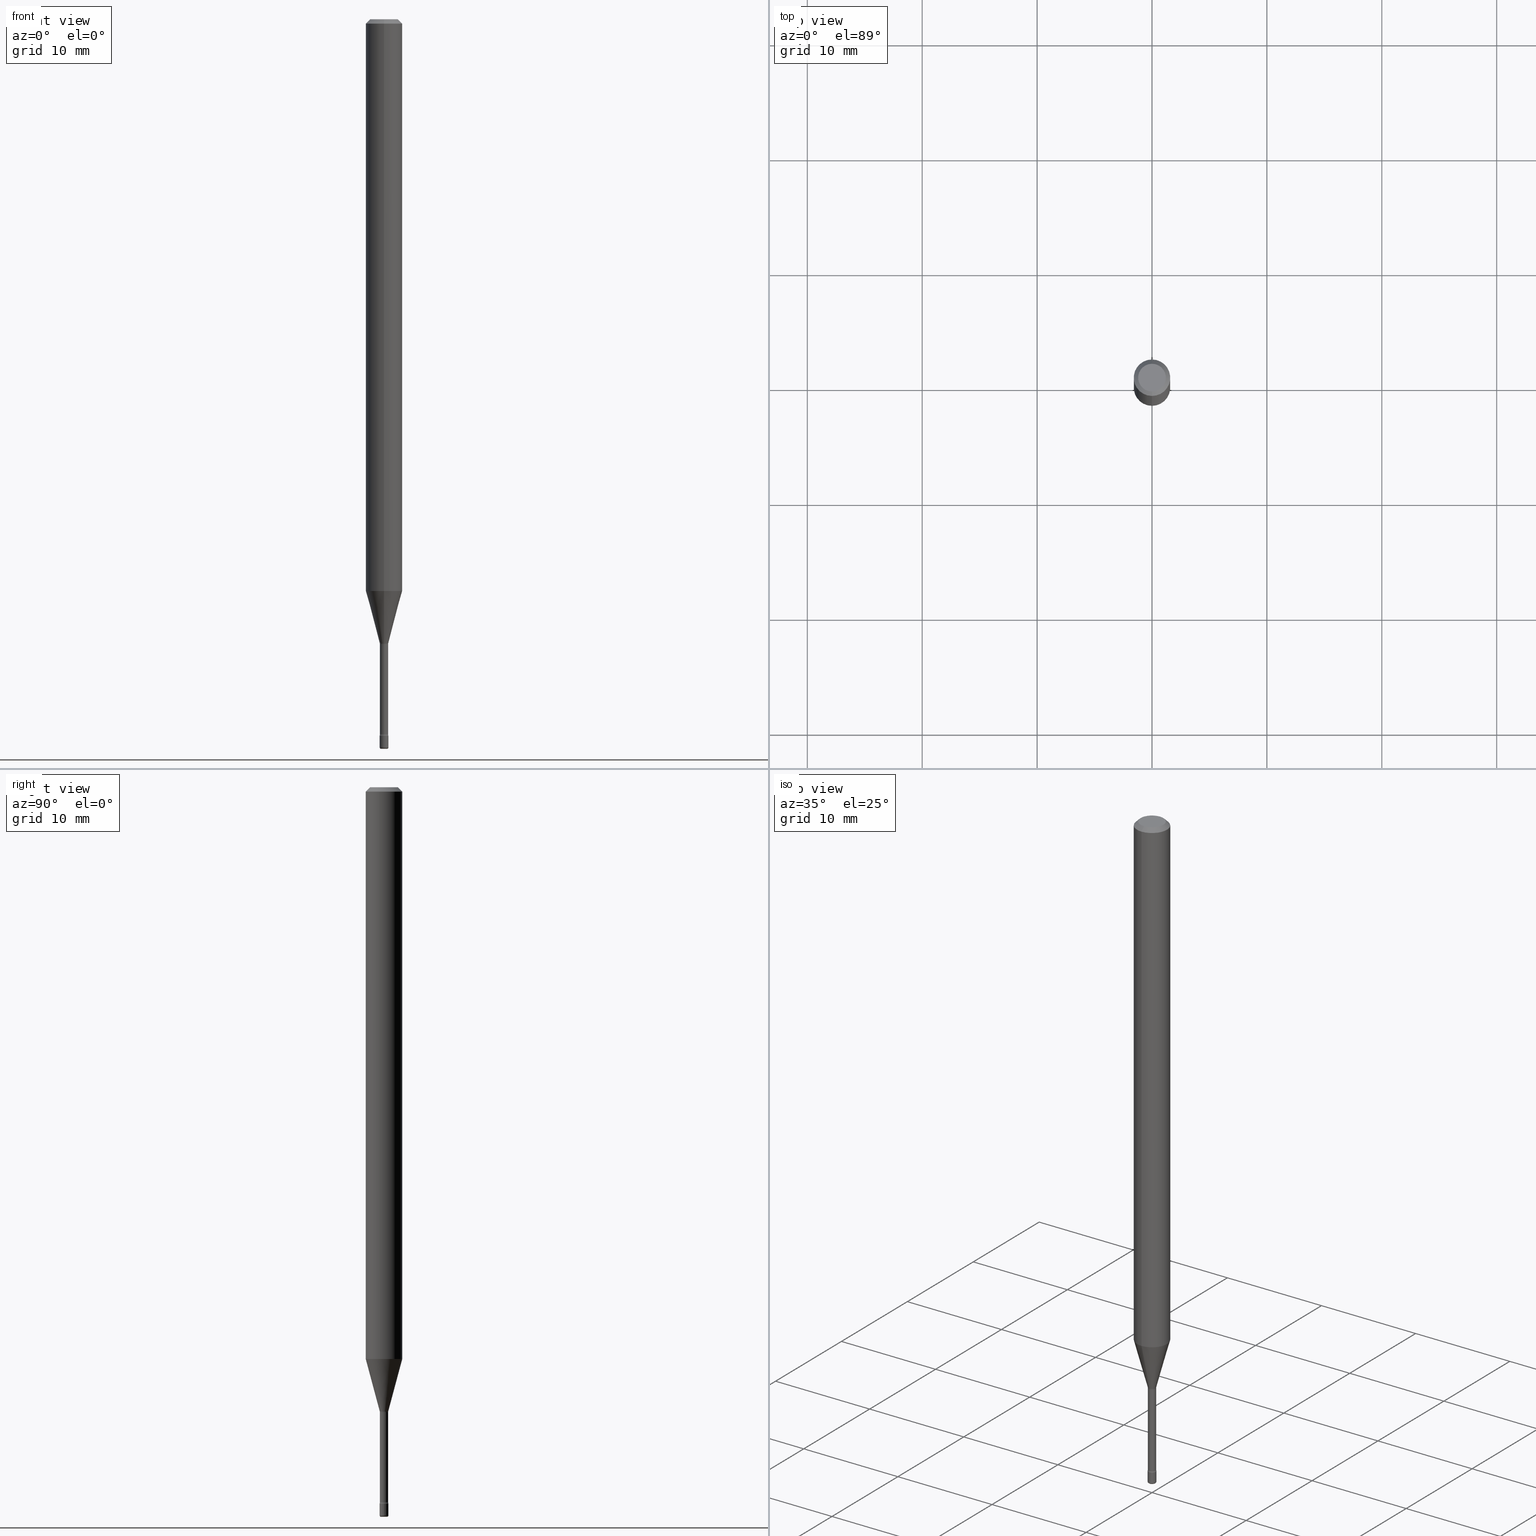
[diagram: canonical four-view strip — front | top / right | iso, engineering-drawing reading convention]
A machine part, canonical four-view strip (front | top / right | iso — engineering-drawing reading convention). The complete STEP part file that produces these views, byte-faithful:
ISO-10303-21;
HEADER;
FILE_DESCRIPTION (( 'STEP AP203' ),
    '1' );
FILE_NAME ('08793.STEP',
    '2024-03-06T20:02:41',
    ( '' ),
    ( '' ),
    'SwSTEP 2.0',
    'SolidWorks 2023',
    '' );
FILE_SCHEMA (( 'CONFIG_CONTROL_DESIGN' ));
ENDSEC;

DATA;
#1 = ORIENTED_EDGE ( 'NONE', *, *, #257, .T. ) ;
#2 = DIRECTION ( 'NONE',  ( -2.445522679557193987E-29, 3.491404189108077503E-15, 1.000000000000000000 ) ) ;
#3 = VERTEX_POINT ( 'NONE', #159 ) ;
#4 = DIRECTION ( 'NONE',  ( -2.445522679557193987E-29, 3.491404189108077503E-15, 1.000000000000000000 ) ) ;
#5 = EDGE_CURVE ( 'NONE', #331, #203, #291, .T. ) ;
#6 = ORIENTED_EDGE ( 'NONE', *, *, #285, .T. ) ;
#7 = DIRECTION ( 'NONE',  ( -2.445522679557193987E-29, 3.491404189108077503E-15, 1.000000000000000000 ) ) ;
#8 = EDGE_CURVE ( 'NONE', #52, #203, #433, .T. ) ;
#9 = EDGE_LOOP ( 'NONE', ( #459, #1 ) ) ;
#10 = DIRECTION ( 'NONE',  ( -2.445522679557193987E-29, 3.491404189108077503E-15, 1.000000000000000000 ) ) ;
#11 = ORIENTED_EDGE ( 'NONE', *, *, #518, .T. ) ;
#12 =( NAMED_UNIT ( * ) SI_UNIT ( $, .STERADIAN. ) SOLID_ANGLE_UNIT ( ) );
#13 = TOROIDAL_SURFACE ( 'NONE', #145, 0.02910000000000000087, 0.01500000000000002720 ) ;
#14 = EDGE_CURVE ( 'NONE', #3, #45, #558, .T. ) ;
#15 = CARTESIAN_POINT ( 'NONE',  ( -1.169113584055446105E-44, 1.669184350826100908E-30, 4.780733988912460139E-16 ) ) ;
#16 = CARTESIAN_POINT ( 'NONE',  ( 1.001865257421740500E-16, 0.01409999999999999275, 4.288445998248221877E-16 ) ) ;
#17 = CARTESIAN_POINT ( 'NONE',  ( 6.101444671431915719E-29, -8.711245940413648329E-15, -2.495000000000000107 ) ) ;
#18 = EDGE_CURVE ( 'NONE', #458, #172, #210, .T. ) ;
#19 = DIRECTION ( 'NONE',  ( -2.445522679557193987E-29, 3.491404189108077503E-15, 1.000000000000000000 ) ) ;
#20 = CARTESIAN_POINT ( 'NONE',  ( -1.020288540047705920E-16, -0.01461111260567144257, -2.138092501787273392 ) ) ;
#21 = EDGE_LOOP ( 'NONE', ( #58, #389, #132, #30 ) ) ;
#22 = CARTESIAN_POINT ( 'NONE',  ( 5.991110947347057702E-29, -8.553718623887254041E-15, -2.449882383367230521 ) ) ;
#23 = ADVANCED_FACE ( 'NONE', ( #74 ), #68, .T. ) ;
#24 = ORIENTED_EDGE ( 'NONE', *, *, #113, .F. ) ;
#25 = AXIS2_PLACEMENT_3D ( 'NONE', #201, #19, #455 ) ;
#26 = CARTESIAN_POINT ( 'NONE',  ( 3.668284019335797619E-31, -5.237106283662126559E-17, -0.01500000000000002720 ) ) ;
#27 = ORIENTED_EDGE ( 'NONE', *, *, #8, .T. ) ;
#28 = DATE_AND_TIME ( #295, #436 ) ;
#29 = CARTESIAN_POINT ( 'NONE',  ( 0.000000000000000000, 0.000000000000000000, 0.000000000000000000 ) ) ;
#30 = ORIENTED_EDGE ( 'NONE', *, *, #447, .F. ) ;
#31 = DIRECTION ( 'NONE',  ( 4.937700262164546464E-15, 0.7071067811865449082, -0.7071067811865501263 ) ) ;
#32 = VERTEX_POINT ( 'NONE', #364 ) ;
#33 = PERSON_AND_ORGANIZATION ( #431, #363 ) ;
#34 = CARTESIAN_POINT ( 'NONE',  ( 0.01499999999999999944, -8.676331127025216680E-15, -2.455000000000000071 ) ) ;
#35 = VECTOR ( 'NONE', #123, 39.37007874015748143 ) ;
#36 = EDGE_LOOP ( 'NONE', ( #486, #202, #104, #303 ) ) ;
#37 = ORIENTED_EDGE ( 'NONE', *, *, #194, .T. ) ;
#38 = APPROVAL_STATUS ( 'not_yet_approved' ) ;
#39 = ORIENTED_EDGE ( 'NONE', *, *, #160, .F. ) ;
#40 = CARTESIAN_POINT ( 'NONE',  ( -0.01499999999999999944, -8.534834903272770697E-15, -2.455000000000000071 ) ) ;
#41 = EDGE_CURVE ( 'NONE', #3, #534, #415, .T. ) ;
#42 = ORIENTED_EDGE ( 'NONE', *, *, #397, .F. ) ;
#43 = APPROVAL_STATUS ( 'not_yet_approved' ) ;
#44 = FACE_OUTER_BOUND ( 'NONE', #530, .T. ) ;
#45 = VERTEX_POINT ( 'NONE', #151 ) ;
#46 = ADVANCED_FACE ( 'NONE', ( #71 ), #497, .T. ) ;
#47 = FACE_OUTER_BOUND ( 'NONE', #36, .T. ) ;
#48 = CIRCLE ( 'NONE', #548, 0.01461111260566397632 ) ;
#49 = AXIS2_PLACEMENT_3D ( 'NONE', #258, #474, #127 ) ;
#50 = ORIENTED_EDGE ( 'NONE', *, *, #563, .F. ) ;
#51 = PLANE ( 'NONE',  #504 ) ;
#52 = VERTEX_POINT ( 'NONE', #410 ) ;
#53 = ORIENTED_EDGE ( 'NONE', *, *, #67, .T. ) ;
#54 = CARTESIAN_POINT ( 'NONE',  ( 5.238132526377788520E-29, -7.478664998702409610E-15, -2.141974787463811314 ) ) ;
#55 = CARTESIAN_POINT ( 'NONE',  ( 5.238247921782450583E-29, -7.478499745915034063E-15, -2.141974787463811314 ) ) ;
#56 = CC_DESIGN_APPROVAL ( #155, ( #444 ) ) ;
#57 = TOROIDAL_SURFACE ( 'NONE', #214, 0.01000000000000000021, 0.005000000000000042605 ) ;
#58 = ORIENTED_EDGE ( 'NONE', *, *, #18, .T. ) ;
#59 = DIRECTION ( 'NONE',  ( 1.000000000000000000, -6.982962677686266711E-15, 4.876176775795935793E-29 ) ) ;
#60 = VERTEX_POINT ( 'NONE', #408 ) ;
#61 = DIRECTION ( 'NONE',  ( -1.000000000000000000, 6.982962677686265922E-15, -4.883557194083112340E-29 ) ) ;
#62 = CARTESIAN_POINT ( 'NONE',  ( 6.003758178312911639E-29, -8.571397284260330984E-15, -2.455000000000000071 ) ) ;
#63 = AXIS2_PLACEMENT_3D ( 'NONE', #323, #419, #112 ) ;
#64 = AXIS2_PLACEMENT_3D ( 'NONE', #513, #380, #264 ) ;
#65 = CONICAL_SURFACE ( 'NONE', #492, 0.06250000000000000000, 0.7853981633974480570 ) ;
#66 = FACE_OUTER_BOUND ( 'NONE', #421, .T. ) ;
#67 = EDGE_CURVE ( 'NONE', #331, #317, #413, .T. ) ;
#68 = CYLINDRICAL_SURFACE ( 'NONE', #164, 0.01500000000000000291 ) ;
#69 = EDGE_LOOP ( 'NONE', ( #263, #493, #192, #353 ) ) ;
#70 = DIRECTION ( 'NONE',  ( -6.982962677686262766E-15, -1.000000000000000000, 0.000000000000000000 ) ) ;
#71 = FACE_OUTER_BOUND ( 'NONE', #9, .T. ) ;
#72 = COORDINATED_UNIVERSAL_TIME_OFFSET ( 5, 0, .BEHIND. ) ;
#73 = VECTOR ( 'NONE', #193, 39.37007874015748143 ) ;
#74 = FACE_OUTER_BOUND ( 'NONE', #110, .T. ) ;
#75 = VERTEX_POINT ( 'NONE', #115 ) ;
#76 = MECHANICAL_CONTEXT ( 'NONE', #260, 'mechanical' ) ;
#77 = DIMENSIONAL_EXPONENTS ( 1.000000000000000000, 0.000000000000000000, 0.000000000000000000, 0.000000000000000000, 0.000000000000000000, 0.000000000000000000, 0.000000000000000000 ) ;
#78 = ADVANCED_FACE ( 'NONE', ( #461 ), #108, .T. ) ;
#79 = ORIENTED_EDGE ( 'NONE', *, *, #315, .T. ) ;
#80 = CALENDAR_DATE ( 2024, 6, 3 ) ;
#81 = DIRECTION ( 'NONE',  ( -2.445522679557193987E-29, 3.491404189108077503E-15, 1.000000000000000000 ) ) ;
#82 = ORIENTED_EDGE ( 'NONE', *, *, #215, .T. ) ;
#83 = PERSON_AND_ORGANIZATION ( #431, #363 ) ;
#84 = ADVANCED_FACE ( 'NONE', ( #66 ), #550, .F. ) ;
#85 = DIRECTION ( 'NONE',  ( -2.445522679557193987E-29, 3.491404189108077503E-15, 1.000000000000000000 ) ) ;
#86 = AXIS2_PLACEMENT_3D ( 'NONE', #384, #175, #562 ) ;
#87 = ORIENTED_EDGE ( 'NONE', *, *, #484, .T. ) ;
#88 = DIRECTION ( 'NONE',  ( -2.445468806185136597E-29, 3.491481338843145583E-15, 1.000000000000000000 ) ) ;
#89 = ORIENTED_EDGE ( 'NONE', *, *, #508, .T. ) ;
#90 = CARTESIAN_POINT ( 'NONE',  ( 2.067679361062415209E-16, 0.02909999999999252074, -2.141974787463811314 ) ) ;
#91 = DIRECTION ( 'NONE',  ( 1.000000000000000000, -6.982962677686078962E-15, 0.000000000000000000 ) ) ;
#92 = CLOSED_SHELL ( 'NONE', ( #311, #441, #46, #393, #473, #23 ) ) ;
#93 = VECTOR ( 'NONE', #500, 39.37007874015748143 ) ;
#94 = AXIS2_PLACEMENT_3D ( 'NONE', #17, #369, #324 ) ;
#95 = ORIENTED_EDGE ( 'NONE', *, *, #373, .T. ) ;
#96 = CARTESIAN_POINT ( 'NONE',  ( 6.628193898023850779E-46, -9.455521306669785144E-32, -2.709285180955518208E-17 ) ) ;
#97 = CC_DESIGN_PERSON_AND_ORGANIZATION_ASSIGNMENT ( #342, #522, ( #444 ) ) ;
#98 = DIRECTION ( 'NONE',  ( -6.982962677686265133E-15, -1.000000000000000000, 3.491404189108078686E-15 ) ) ;
#99 = EDGE_LOOP ( 'NONE', ( #224, #448 ) ) ;
#100 = FACE_OUTER_BOUND ( 'NONE', #21, .T. ) ;
#101 = CIRCLE ( 'NONE', #399, 0.01409999999999998754 ) ;
#102 = AXIS2_PLACEMENT_3D ( 'NONE', #15, #150, #546 ) ;
#103 = LINE ( 'NONE', #536, #362 ) ;
#104 = ORIENTED_EDGE ( 'NONE', *, *, #190, .T. ) ;
#105 = CARTESIAN_POINT ( 'NONE',  ( -0.01500000000000000291, 1.065814103640150486E-16, -7.378402635382359408E-31 ) ) ;
#106 = DIRECTION ( 'NONE',  ( -2.438088387897960049E-29, 3.491481338843145188E-15, 1.000000000000000000 ) ) ;
#107 = DIRECTION ( 'NONE',  ( -6.982962677686265133E-15, -1.000000000000000000, 0.000000000000000000 ) ) ;
#108 = CYLINDRICAL_SURFACE ( 'NONE', #25, 0.01409999999999999275 ) ;
#109 = EDGE_CURVE ( 'NONE', #172, #458, #48, .T. ) ;
#110 = EDGE_LOOP ( 'NONE', ( #511, #498, #440, #114 ) ) ;
#111 = CARTESIAN_POINT ( 'NONE',  ( 5.991242930772193151E-29, -8.553529616110430631E-15, -2.449882383367230521 ) ) ;
#112 = DIRECTION ( 'NONE',  ( -1.000000000000000000, 7.105427357601060234E-15, 0.000000000000000000 ) ) ;
#113 = EDGE_CURVE ( 'NONE', #60, #255, #345, .T. ) ;
#114 = ORIENTED_EDGE ( 'NONE', *, *, #257, .F. ) ;
#115 = CARTESIAN_POINT ( 'NONE',  ( -9.845977375531634842E-17, -0.01410000000000854146, -2.449882383367230521 ) ) ;
#116 =( CONVERSION_BASED_UNIT ( 'INCH', #509 ) LENGTH_UNIT ( ) NAMED_UNIT ( #77 ) );
#117 = ORIENTED_EDGE ( 'NONE', *, *, #8, .F. ) ;
#118 = MANIFOLD_SOLID_BREP ( 'Body-Move/Copy2[2]', #463 ) ;
#119 = CC_DESIGN_APPROVAL ( #228, ( #378 ) ) ;
#120 = CARTESIAN_POINT ( 'NONE',  ( -9.845977375537628952E-17, -0.01409999999999999275, 5.273021979576699880E-16 ) ) ;
#121 = DATE_AND_TIME ( #249, #199 ) ;
#122 = DIRECTION ( 'NONE',  ( -6.982962677686265922E-15, -1.000000000000000000, 3.491404189108077503E-15 ) ) ;
#123 = DIRECTION ( 'NONE',  ( -4.851104656540962697E-15, -0.7071067811865497932, -0.7071067811865452413 ) ) ;
#124 = PRODUCT ( '08793', '08793', '', ( #76 ) ) ;
#125 = EDGE_LOOP ( 'NONE', ( #501, #89, #154, #24 ) ) ;
#126 = APPROVAL ( #43, 'UNSPECIFIED' ) ;
#127 = DIRECTION ( 'NONE',  ( 1.000000000000000000, 0.000000000000000000, 0.000000000000000000 ) ) ;
#128 = MANIFOLD_SOLID_BREP ( 'Body-Move/Copy2[1]', #92 ) ;
#129 = CIRCLE ( 'NONE', #64, 0.06250000000000000000 ) ;
#130 = DIRECTION ( 'NONE',  ( -2.445522679557193707E-29, 3.491404189108077503E-15, 1.000000000000000000 ) ) ;
#131 = DIRECTION ( 'NONE',  ( -2.445522679557193987E-29, 3.491404189108077503E-15, 1.000000000000000000 ) ) ;
#132 = ORIENTED_EDGE ( 'NONE', *, *, #544, .F. ) ;
#133 = FACE_OUTER_BOUND ( 'NONE', #125, .T. ) ;
#134 = VERTEX_POINT ( 'NONE', #171 ) ;
#135 = ORIENTED_EDGE ( 'NONE', *, *, #67, .F. ) ;
#136 = AXIS2_PLACEMENT_3D ( 'NONE', #216, #356, #98 ) ;
#137 = ADVANCED_FACE ( 'NONE', ( #44 ), #390, .F. ) ;
#138 = CIRCLE ( 'NONE', #539, 0.01500000000000000291 ) ;
#139 = ORIENTED_EDGE ( 'NONE', *, *, #518, .F. ) ;
#140 = DIRECTION ( 'NONE',  ( 1.000000000000000000, -6.982962677686266711E-15, 0.000000000000000000 ) ) ;
#141 = EDGE_CURVE ( 'NONE', #255, #287, #256, .T. ) ;
#142 = ORIENTED_EDGE ( 'NONE', *, *, #179, .F. ) ;
#143 = CYLINDRICAL_SURFACE ( 'NONE', #435, 0.06250000000000000000 ) ;
#144 = CARTESIAN_POINT ( 'NONE',  ( 1.038181992333259507E-16, 0.01461111260565651181, -2.138092501787273392 ) ) ;
#145 = AXIS2_PLACEMENT_3D ( 'NONE', #54, #7, #349 ) ;
#146 = VECTOR ( 'NONE', #549, 39.37007874015748143 ) ;
#147 = DIRECTION ( 'NONE',  ( -1.807323732225328562E-15, -0.2588190451025179639, 0.9659258262890689783 ) ) ;
#148 = ORIENTED_EDGE ( 'NONE', *, *, #334, .F. ) ;
#149 = ADVANCED_BREP_SHAPE_REPRESENTATION ( '08793', ( #128, #118, #49 ), #293 ) ;
#150 = DIRECTION ( 'NONE',  ( -2.445522679557193987E-29, 3.491404189108077503E-15, 1.000000000000000000 ) ) ;
#151 = CARTESIAN_POINT ( 'NONE',  ( -0.01500000000000002373, -8.604664530049633996E-15, -2.495000000000000107 ) ) ;
#152 = DIRECTION ( 'NONE',  ( -2.445468806185136597E-29, 3.491481338843145583E-15, 1.000000000000000000 ) ) ;
#153 = CARTESIAN_POINT ( 'NONE',  ( 2.067679361062490890E-16, 0.02909999999999145562, -2.449882383367230521 ) ) ;
#154 = ORIENTED_EDGE ( 'NONE', *, *, #141, .F. ) ;
#155 = APPROVAL ( #301, 'UNSPECIFIED' ) ;
#156 = CIRCLE ( 'NONE', #406, 0.01000000000000000021 ) ;
#157 = VERTEX_POINT ( 'NONE', #302 ) ;
#158 = CARTESIAN_POINT ( 'NONE',  ( -2.032042139206105069E-16, -0.02910000000000856346, -2.449882383367230521 ) ) ;
#159 = CARTESIAN_POINT ( 'NONE',  ( -0.01000000000000000021, -8.631156801790744428E-15, -2.500000000000000000 ) ) ;
#160 = EDGE_CURVE ( 'NONE', #366, #317, #212, .T. ) ;
#161 = EDGE_LOOP ( 'NONE', ( #169, #282, #95, #325 ) ) ;
#162 = APPLICATION_PROTOCOL_DEFINITION ( 'international standard', 'config_control_design', 1994, #209 ) ;
#163 = DIRECTION ( 'NONE',  ( 1.000000000000000000, -6.982962677686268288E-15, 0.000000000000000000 ) ) ;
#164 = AXIS2_PLACEMENT_3D ( 'NONE', #29, #542, #507 ) ;
#165 = PERSON_AND_ORGANIZATION_ROLE ( 'design_owner' ) ;
#166 = CC_DESIGN_SECURITY_CLASSIFICATION ( #337, ( #444 ) ) ;
#167 = DIRECTION ( 'NONE',  ( -6.982962677686265922E-15, -1.000000000000000000, 3.491404189108077503E-15 ) ) ;
#168 = CARTESIAN_POINT ( 'NONE',  ( 0.01500000000000000291, -1.047444401652940228E-16, 7.314265163693905266E-31 ) ) ;
#169 = ORIENTED_EDGE ( 'NONE', *, *, #14, .F. ) ;
#170 = APPROVAL_ROLE ( '' ) ;
#171 = CARTESIAN_POINT ( 'NONE',  ( 4.440892098501102436E-16, 0.06249999999999313743, -1.959368740913667306 ) ) ;
#172 = VERTEX_POINT ( 'NONE', #220 ) ;
#173 = CALENDAR_DATE ( 2024, 6, 3 ) ;
#174 = VECTOR ( 'NONE', #31, 39.37007874015748143 ) ;
#175 = DIRECTION ( 'NONE',  ( -1.000000000000000000, 6.982962677686265922E-15, -4.883557194083112340E-29 ) ) ;
#176 = VECTOR ( 'NONE', #147, 39.37007874015749564 ) ;
#177 = DIRECTION ( 'NONE',  ( -6.982962677686265922E-15, -1.000000000000000000, 3.491404189108078292E-15 ) ) ;
#178 = ORIENTED_EDGE ( 'NONE', *, *, #14, .T. ) ;
#179 = EDGE_CURVE ( 'NONE', #234, #185, #343, .T. ) ;
#180 = DIRECTION ( 'NONE',  ( -2.445522679557193987E-29, 3.491404189108077503E-15, 1.000000000000000000 ) ) ;
#181 = ORIENTED_EDGE ( 'NONE', *, *, #502, .T. ) ;
#182 = DIRECTION ( 'NONE',  ( -6.982962677686265922E-15, -1.000000000000000000, 3.491404189108077503E-15 ) ) ;
#183 = AXIS2_PLACEMENT_3D ( 'NONE', #442, #316, #182 ) ;
#184 = FACE_OUTER_BOUND ( 'NONE', #99, .T. ) ;
#185 = VERTEX_POINT ( 'NONE', #388 ) ;
#186 = DIRECTION ( 'NONE',  ( -1.000000000000000000, 6.982962677686265922E-15, -4.876176775795935793E-29 ) ) ;
#187 = DIRECTION ( 'NONE',  ( 6.982962677686265922E-15, 1.000000000000000000, -3.491404189108077503E-15 ) ) ;
#188 = VECTOR ( 'NONE', #531, 39.37007874015747433 ) ;
#189 = AXIS2_PLACEMENT_3D ( 'NONE', #96, #352, #494 ) ;
#190 = EDGE_CURVE ( 'NONE', #458, #366, #306, .T. ) ;
#191 = DIRECTION ( 'NONE',  ( -2.445522679557193987E-29, 3.491404189108077503E-15, 1.000000000000000000 ) ) ;
#192 = ORIENTED_EDGE ( 'NONE', *, *, #334, .T. ) ;
#193 = DIRECTION ( 'NONE',  ( -2.445522679557193987E-29, 3.491404189108077503E-15, 1.000000000000000000 ) ) ;
#194 = EDGE_CURVE ( 'NONE', #534, #3, #156, .T. ) ;
#195 = CARTESIAN_POINT ( 'NONE',  ( 4.440892098500625669E-16, 0.06250000000000000000, 2.598606370719912193E-16 ) ) ;
#196 = ORIENTED_EDGE ( 'NONE', *, *, #299, .T. ) ;
#197 = ORIENTED_EDGE ( 'NONE', *, *, #373, .F. ) ;
#198 = CIRCLE ( 'NONE', #425, 0.04750000000000000749 ) ;
#199 = LOCAL_TIME ( 15, 2, 41.00000000000000000, #253 ) ;
#200 = DIRECTION ( 'NONE',  ( 6.982962677686265922E-15, 1.000000000000000000, -3.483106191921935554E-15 ) ) ;
#201 = CARTESIAN_POINT ( 'NONE',  ( -1.169113584055446105E-44, 1.669184350826100908E-30, 4.780733988912460139E-16 ) ) ;
#202 = ORIENTED_EDGE ( 'NONE', *, *, #18, .F. ) ;
#203 = VERTEX_POINT ( 'NONE', #296 ) ;
#204 = SHAPE_DEFINITION_REPRESENTATION ( #428, #149 ) ;
#205 = DIRECTION ( 'NONE',  ( -6.982962677686265133E-15, -1.000000000000000000, 0.000000000000000000 ) ) ;
#206 = VERTEX_POINT ( 'NONE', #217 ) ;
#207 = PERSON_AND_ORGANIZATION ( #431, #363 ) ;
#208 = FACE_OUTER_BOUND ( 'NONE', #552, .T. ) ;
#209 = APPLICATION_CONTEXT ( 'configuration controlled 3d designs of mechanical parts and assemblies' ) ;
#210 = CIRCLE ( 'NONE', #532, 0.01461111260566397632 ) ;
#211 = ORIENTED_EDGE ( 'NONE', *, *, #315, .F. ) ;
#212 = CIRCLE ( 'NONE', #283, 0.01409999999999999622 ) ;
#213 = DATE_AND_TIME ( #173, #284 ) ;
#214 = AXIS2_PLACEMENT_3D ( 'NONE', #496, #152, #361 ) ;
#215 = EDGE_CURVE ( 'NONE', #172, #317, #476, .T. ) ;
#216 = CARTESIAN_POINT ( 'NONE',  ( -1.169113584055446105E-44, 1.669184350826100908E-30, 4.780733988912460139E-16 ) ) ;
#217 = CARTESIAN_POINT ( 'NONE',  ( 3.840629472727447874E-16, 0.04750000000000000749, -1.929345507921888683E-16 ) ) ;
#218 = ADVANCED_FACE ( 'NONE', ( #266 ), #354, .T. ) ;
#219 = DATE_AND_TIME ( #557, #230 ) ;
#220 = CARTESIAN_POINT ( 'NONE',  ( 2.739537045417182759E-16, 0.01461111260565651181, -2.138092501787273392 ) ) ;
#221 = AXIS2_PLACEMENT_3D ( 'NONE', #437, #226, #91 ) ;
#222 = CARTESIAN_POINT ( 'NONE',  ( 6.101444671431915719E-29, -8.711245940413648329E-15, -2.495000000000000107 ) ) ;
#223 = AXIS2_PLACEMENT_3D ( 'NONE', #111, #553, #107 ) ;
#224 = ORIENTED_EDGE ( 'NONE', *, *, #194, .F. ) ;
#225 = CYLINDRICAL_SURFACE ( 'NONE', #268, 0.01500000000000000291 ) ;
#226 = DIRECTION ( 'NONE',  ( -6.982962677686266711E-15, -1.000000000000000000, 3.491481338843145583E-15 ) ) ;
#227 = DIRECTION ( 'NONE',  ( -2.445522679557193987E-29, 3.491404189108077503E-15, 1.000000000000000000 ) ) ;
#228 = APPROVAL ( #38, 'UNSPECIFIED' ) ;
#229 = CIRCLE ( 'NONE', #371, 0.01499999999999999944 ) ;
#230 = LOCAL_TIME ( 15, 2, 41.00000000000000000, #555 ) ;
#231 = ORIENTED_EDGE ( 'NONE', *, *, #308, .T. ) ;
#232 = DIRECTION ( 'NONE',  ( -6.982962677686265922E-15, -1.000000000000000000, 3.483106191921935554E-15 ) ) ;
#233 =( LENGTH_UNIT ( ) NAMED_UNIT ( * ) SI_UNIT ( $, .METRE. ) );
#234 = VERTEX_POINT ( 'NONE', #566 ) ;
#235 = EDGE_CURVE ( 'NONE', #331, #75, #101, .T. ) ;
#236 = CARTESIAN_POINT ( 'NONE',  ( 3.668284019335797619E-31, -5.237106283662126559E-17, -0.01500000000000002720 ) ) ;
#237 = DIRECTION ( 'NONE',  ( -6.982962677686265922E-15, -1.000000000000000000, 0.000000000000000000 ) ) ;
#238 = AXIS2_PLACEMENT_3D ( 'NONE', #312, #481, #432 ) ;
#239 = CARTESIAN_POINT ( 'NONE',  ( 6.101444671431915719E-29, -8.711245940413648329E-15, -2.495000000000000107 ) ) ;
#240 = DIRECTION ( 'NONE',  ( -6.982962677686265922E-15, -1.000000000000000000, 0.000000000000000000 ) ) ;
#241 = FACE_OUTER_BOUND ( 'NONE', #355, .T. ) ;
#242 = EDGE_CURVE ( 'NONE', #206, #157, #261, .T. ) ;
#243 = CARTESIAN_POINT ( 'NONE',  ( 6.003625919184510659E-29, -8.571586686859923311E-15, -2.455000000000000071 ) ) ;
#244 = DIRECTION ( 'NONE',  ( -2.445522679557193987E-29, 3.491404189108077503E-15, 1.000000000000000000 ) ) ;
#245 = CIRCLE ( 'NONE', #319, 0.06250000000000000000 ) ;
#246 = AXIS2_PLACEMENT_3D ( 'NONE', #274, #10, #537 ) ;
#247 = PERSON_AND_ORGANIZATION_ROLE ( 'classification_officer' ) ;
#248 = ORIENTED_EDGE ( 'NONE', *, *, #308, .F. ) ;
#249 = CALENDAR_DATE ( 2024, 6, 3 ) ;
#250 = DIRECTION ( 'NONE',  ( 1.000000000000000000, -7.105427357601001070E-15, 4.926314563730321560E-29 ) ) ;
#251 = DESIGN_CONTEXT ( 'detailed design', #209, 'design' ) ;
#252 = ADVANCED_FACE ( 'NONE', ( #208 ), #348, .F. ) ;
#253 = COORDINATED_UNIVERSAL_TIME_OFFSET ( 5, 0, .BEHIND. ) ;
#254 = CARTESIAN_POINT ( 'NONE',  ( 5.991242930772193151E-29, -8.553529616110430631E-15, -2.449882383367230521 ) ) ;
#255 = VERTEX_POINT ( 'NONE', #34 ) ;
#256 = CIRCLE ( 'NONE', #238, 0.01499999999999999944 ) ;
#257 = EDGE_CURVE ( 'NONE', #287, #255, #229, .T. ) ;
#258 = CARTESIAN_POINT ( 'NONE',  ( 0.000000000000000000, 0.000000000000000000, 0.000000000000000000 ) ) ;
#259 = CIRCLE ( 'NONE', #223, 0.01409999999999998754 ) ;
#260 = APPLICATION_CONTEXT ( 'configuration controlled 3d designs of mechanical parts and assemblies' ) ;
#261 = LINE ( 'NONE', #377, #174 ) ;
#262 = DATE_TIME_ROLE ( 'creation_date' ) ;
#263 = ORIENTED_EDGE ( 'NONE', *, *, #420, .F. ) ;
#264 = DIRECTION ( 'NONE',  ( -6.982962677686265922E-15, -1.000000000000000000, 4.370956789862821150E-15 ) ) ;
#265 = EDGE_LOOP ( 'NONE', ( #304, #82, #196, #564 ) ) ;
#266 = FACE_OUTER_BOUND ( 'NONE', #271, .T. ) ;
#267 = CC_DESIGN_PERSON_AND_ORGANIZATION_ASSIGNMENT ( #207, #165, ( #124 ) ) ;
#268 = AXIS2_PLACEMENT_3D ( 'NONE', #529, #487, #59 ) ;
#269 = FACE_OUTER_BOUND ( 'NONE', #265, .T. ) ;
#270 = CC_DESIGN_APPROVAL ( #126, ( #337 ) ) ;
#271 = EDGE_LOOP ( 'NONE', ( #488, #351, #434, #524 ) ) ;
#272 = DIRECTION ( 'NONE',  ( -6.982962677686265133E-15, -1.000000000000000000, 3.491404189108077109E-15 ) ) ;
#273 = CC_DESIGN_PERSON_AND_ORGANIZATION_ASSIGNMENT ( #516, #429, ( #378 ) ) ;
#274 = CARTESIAN_POINT ( 'NONE',  ( 5.228753704111956523E-29, -7.464945117440654423E-15, -2.138092501787273392 ) ) ;
#275 = AXIS2_PLACEMENT_3D ( 'NONE', #243, #106, #451 ) ;
#276 = FACE_OUTER_BOUND ( 'NONE', #396, .T. ) ;
#277 = EDGE_CURVE ( 'NONE', #75, #366, #568, .T. ) ;
#278 = ORIENTED_EDGE ( 'NONE', *, *, #242, .T. ) ;
#279 = CARTESIAN_POINT ( 'NONE',  ( 3.316907271900976589E-16, 0.04750000000000000749, 5.964857455821171585E-17 ) ) ;
#280 = DIRECTION ( 'NONE',  ( 1.000000000000000000, -6.982962677686235945E-15, 0.000000000000000000 ) ) ;
#281 = DIRECTION ( 'NONE',  ( -2.445468806185136597E-29, 3.491481338843145583E-15, 1.000000000000000000 ) ) ;
#282 = ORIENTED_EDGE ( 'NONE', *, *, #41, .T. ) ;
#283 = AXIS2_PLACEMENT_3D ( 'NONE', #339, #335, #475 ) ;
#284 = LOCAL_TIME ( 15, 2, 41.00000000000000000, #480 ) ;
#285 = EDGE_CURVE ( 'NONE', #134, #32, #129, .T. ) ;
#286 = CARTESIAN_POINT ( 'NONE',  ( 6.003758178312911639E-29, -8.571397284260330984E-15, -2.455000000000000071 ) ) ;
#287 = VERTEX_POINT ( 'NONE', #40 ) ;
#288 = ORIENTED_EDGE ( 'NONE', *, *, #567, .F. ) ;
#289 = ORIENTED_EDGE ( 'NONE', *, *, #420, .T. ) ;
#290 = DIRECTION ( 'NONE',  ( -2.445522679557193987E-29, 3.491404189108077503E-15, 1.000000000000000000 ) ) ;
#291 = CIRCLE ( 'NONE', #360, 0.01500000000000002373 ) ;
#292 = CIRCLE ( 'NONE', #569, 0.01409999999999999622 ) ;
#293 =( GEOMETRIC_REPRESENTATION_CONTEXT ( 3 ) GLOBAL_UNCERTAINTY_ASSIGNED_CONTEXT ( ( #294 ) ) GLOBAL_UNIT_ASSIGNED_CONTEXT ( ( #116, #332, #12 ) ) REPRESENTATION_CONTEXT ( 'NONE', 'WORKASPACE' ) );
#294 = UNCERTAINTY_MEASURE_WITH_UNIT (LENGTH_MEASURE( 1.000000000000000082E-05 ), #116, 'distance_accuracy_value', 'NONE');
#295 = CALENDAR_DATE ( 2024, 6, 3 ) ;
#296 = CARTESIAN_POINT ( 'NONE',  ( 1.065814103640751253E-16, 0.01499999999999144032, -2.455000000000000071 ) ) ;
#297 = ADVANCED_FACE ( 'NONE', ( #517 ), #424, .T. ) ;
#298 = DIRECTION ( 'NONE',  ( 1.000000000000000000, -6.982962677686235945E-15, 0.000000000000000000 ) ) ;
#299 = EDGE_CURVE ( 'NONE', #317, #366, #292, .T. ) ;
#300 = EDGE_LOOP ( 'NONE', ( #438, #6, #547, #248 ) ) ;
#301 = APPROVAL_STATUS ( 'not_yet_approved' ) ;
#302 = CARTESIAN_POINT ( 'NONE',  ( 4.440892098501108353E-16, 0.06249999999999995143, -0.01500000000000024578 ) ) ;
#303 = ORIENTED_EDGE ( 'NONE', *, *, #160, .T. ) ;
#304 = ORIENTED_EDGE ( 'NONE', *, *, #109, .F. ) ;
#305 = AXIS2_PLACEMENT_3D ( 'NONE', #556, #130, #122 ) ;
#306 = CIRCLE ( 'NONE', #86, 0.01500000000000003240 ) ;
#307 = PERSON_AND_ORGANIZATION ( #431, #363 ) ;
#308 = EDGE_CURVE ( 'NONE', #157, #185, #533, .T. ) ;
#309 = AXIS2_PLACEMENT_3D ( 'NONE', #26, #411, #200 ) ;
#310 = DIRECTION ( 'NONE',  ( -6.982962677686265922E-15, -1.000000000000000000, 0.000000000000000000 ) ) ;
#311 = ADVANCED_FACE ( 'NONE', ( #133 ), #225, .T. ) ;
#312 = CARTESIAN_POINT ( 'NONE',  ( 6.003625919184510659E-29, -8.571586686859923311E-15, -2.455000000000000071 ) ) ;
#313 = DIRECTION ( 'NONE',  ( -6.982962677686265133E-15, -1.000000000000000000, 0.000000000000000000 ) ) ;
#314 = LINE ( 'NONE', #365, #176 ) ;
#315 = EDGE_CURVE ( 'NONE', #206, #234, #198, .T. ) ;
#316 = DIRECTION ( 'NONE',  ( -2.445522679557193987E-29, 3.491404189108077503E-15, 1.000000000000000000 ) ) ;
#317 = VERTEX_POINT ( 'NONE', #535 ) ;
#318 = CARTESIAN_POINT ( 'NONE',  ( 1.033839680531545582E-16, 0.01409999999999143362, -2.449882383367230521 ) ) ;
#319 = AXIS2_PLACEMENT_3D ( 'NONE', #439, #2, #489 ) ;
#320 = AXIS2_PLACEMENT_3D ( 'NONE', #279, #452, #187 ) ;
#321 = DIRECTION ( 'NONE',  ( -6.982962677686265922E-15, -1.000000000000000000, 0.000000000000000000 ) ) ;
#322 = EDGE_CURVE ( 'NONE', #45, #60, #525, .T. ) ;
#323 = CARTESIAN_POINT ( 'NONE',  ( -0.01000000000000000021, -8.640191666837638248E-15, -2.495000000000000107 ) ) ;
#324 = DIRECTION ( 'NONE',  ( 1.000000000000000000, -6.982962677686248567E-15, 4.883557194083106735E-29 ) ) ;
#325 = ORIENTED_EDGE ( 'NONE', *, *, #322, .F. ) ;
#326 = LINE ( 'NONE', #195, #73 ) ;
#327 = DIRECTION ( 'NONE',  ( 7.105427357600997914E-15, 1.000000000000000000, 0.000000000000000000 ) ) ;
#328 = AXIS2_PLACEMENT_3D ( 'NONE', #22, #368, #554 ) ;
#329 = CC_DESIGN_DATE_AND_TIME_ASSIGNMENT ( #219, #561, ( #337 ) ) ;
#330 = DIRECTION ( 'NONE',  ( 1.000000000000000000, -6.982962677686266711E-15, 0.000000000000000000 ) ) ;
#331 = VERTEX_POINT ( 'NONE', #318 ) ;
#332 =( NAMED_UNIT ( * ) PLANE_ANGLE_UNIT ( ) SI_UNIT ( $, .RADIAN. ) );
#333 = DIRECTION ( 'NONE',  ( 1.000000000000000000, -7.105427357601001070E-15, 4.926314563730321560E-29 ) ) ;
#334 = EDGE_CURVE ( 'NONE', #185, #157, #245, .T. ) ;
#335 = DIRECTION ( 'NONE',  ( -2.445522679557193987E-29, 3.491404189108077503E-15, 1.000000000000000000 ) ) ;
#336 = VECTOR ( 'NONE', #559, 39.37007874015748143 ) ;
#337 = SECURITY_CLASSIFICATION ( '', '', #565 ) ;
#338 = PERSON_AND_ORGANIZATION ( #431, #363 ) ;
#339 = CARTESIAN_POINT ( 'NONE',  ( 5.238247921782450583E-29, -7.478499745915034063E-15, -2.141974787463811314 ) ) ;
#340 = PRODUCT_RELATED_PRODUCT_CATEGORY ( 'detail', '', ( #124 ) ) ;
#341 = EDGE_LOOP ( 'NONE', ( #135, #445, #346, #540 ) ) ;
#342 = PERSON_AND_ORGANIZATION ( #431, #363 ) ;
#343 = LINE ( 'NONE', #430, #35 ) ;
#344 = ORIENTED_EDGE ( 'NONE', *, *, #502, .F. ) ;
#345 = LINE ( 'NONE', #168, #336 ) ;
#346 = ORIENTED_EDGE ( 'NONE', *, *, #277, .T. ) ;
#347 = AXIS2_PLACEMENT_3D ( 'NONE', #422, #85, #523 ) ;
#348 = PLANE ( 'NONE',  #305 ) ;
#349 = DIRECTION ( 'NONE',  ( -6.982962677686265922E-15, -1.000000000000000000, 3.491404189108077503E-15 ) ) ;
#350 = ORIENTED_EDGE ( 'NONE', *, *, #235, .F. ) ;
#351 = ORIENTED_EDGE ( 'NONE', *, *, #109, .T. ) ;
#352 = DIRECTION ( 'NONE',  ( -2.445522679557193987E-29, 3.491404189108077503E-15, 1.000000000000000000 ) ) ;
#353 = ORIENTED_EDGE ( 'NONE', *, *, #242, .F. ) ;
#354 = CONICAL_SURFACE ( 'NONE', #347, 0.01461111260566397632, 0.2617993877991501295 ) ;
#355 = EDGE_LOOP ( 'NONE', ( #142, #211, #278, #231 ) ) ;
#356 = DIRECTION ( 'NONE',  ( -2.445522679557193987E-29, 3.491404189108077503E-15, 1.000000000000000000 ) ) ;
#357 = ADVANCED_FACE ( 'NONE', ( #47 ), #13, .F. ) ;
#358 = CARTESIAN_POINT ( 'NONE',  ( 6.982962677692379396E-17, 0.009999999999991271080, -2.500000000000000000 ) ) ;
#359 = DIRECTION ( 'NONE',  ( -2.445522679557193987E-29, 3.491404189108077503E-15, 1.000000000000000000 ) ) ;
#360 = AXIS2_PLACEMENT_3D ( 'NONE', #153, #333, #327 ) ;
#361 = DIRECTION ( 'NONE',  ( 1.000000000000000000, -6.982962677686248567E-15, 4.883557194083106735E-29 ) ) ;
#362 = VECTOR ( 'NONE', #359, 39.37007874015748143 ) ;
#363 = ORGANIZATION ( 'UNSPECIFIED', 'UNSPECIFIED', '' ) ;
#364 = CARTESIAN_POINT ( 'NONE',  ( -4.364351673553436475E-16, -0.06250000000000684175, -1.959368740913666640 ) ) ;
#365 = CARTESIAN_POINT ( 'NONE',  ( -1.020288540047705920E-16, -0.01461111260567144257, -2.138092501787273392 ) ) ;
#366 = VERTEX_POINT ( 'NONE', #572 ) ;
#367 = DIRECTION ( 'NONE',  ( 6.982962677686265922E-15, 1.000000000000000000, -3.483106191921935554E-15 ) ) ;
#368 = DIRECTION ( 'NONE',  ( -2.445522679557193987E-29, 3.491404189108077503E-15, 1.000000000000000000 ) ) ;
#369 = DIRECTION ( 'NONE',  ( -2.445468806185136597E-29, 3.491481338843145583E-15, 1.000000000000000000 ) ) ;
#370 = ORIENTED_EDGE ( 'NONE', *, *, #277, .F. ) ;
#371 = AXIS2_PLACEMENT_3D ( 'NONE', #528, #88, #163 ) ;
#372 = APPROVAL_PERSON_ORGANIZATION ( #338, #228, #423 ) ;
#373 = EDGE_CURVE ( 'NONE', #534, #60, #465, .T. ) ;
#374 = AXIS2_PLACEMENT_3D ( 'NONE', #158, #61, #70 ) ;
#375 = DIRECTION ( 'NONE',  ( 2.445522679557193987E-29, -3.491404189108077503E-15, -1.000000000000000000 ) ) ;
#376 = CARTESIAN_POINT ( 'NONE',  ( 5.228753704111956523E-29, -7.464945117440654423E-15, -2.138092501787273392 ) ) ;
#377 = CARTESIAN_POINT ( 'NONE',  ( 4.364351673553919652E-16, 0.06249999999999995143, -0.01500000000000024578 ) ) ;
#378 = PRODUCT_DEFINITION ( 'UNKNOWN', '', #444, #251 ) ;
#379 = APPROVAL_DATE_TIME ( #121, #228 ) ;
#380 = DIRECTION ( 'NONE',  ( -2.445522679557193987E-29, 3.491404189108077503E-15, 1.000000000000000000 ) ) ;
#381 = AXIS2_PLACEMENT_3D ( 'NONE', #387, #81, #167 ) ;
#382 = AXIS2_PLACEMENT_3D ( 'NONE', #286, #506, #321 ) ;
#383 = APPROVAL_ROLE ( '' ) ;
#384 = CARTESIAN_POINT ( 'NONE',  ( -2.032042139206179764E-16, -0.02910000000000748099, -2.141974787463811314 ) ) ;
#385 = ADVANCED_FACE ( 'NONE', ( #269 ), #538, .F. ) ;
#386 = PERSON_AND_ORGANIZATION_ROLE ( 'creator' ) ;
#387 = CARTESIAN_POINT ( 'NONE',  ( 5.991110947347057702E-29, -8.553718623887254041E-15, -2.449882383367230521 ) ) ;
#388 = CARTESIAN_POINT ( 'NONE',  ( -4.364351673553912750E-16, -0.06250000000000005551, -0.01499999999999981036 ) ) ;
#389 = ORIENTED_EDGE ( 'NONE', *, *, #417, .T. ) ;
#390 = TOROIDAL_SURFACE ( 'NONE', #381, 0.02910000000000000780, 0.01500000000000002200 ) ;
#391 = CIRCLE ( 'NONE', #382, 0.01499999999999999944 ) ;
#392 = LINE ( 'NONE', #144, #188 ) ;
#393 = ADVANCED_FACE ( 'NONE', ( #184 ), #51, .T. ) ;
#394 = ORIENTED_EDGE ( 'NONE', *, *, #5, .F. ) ;
#395 = DIRECTION ( 'NONE',  ( 2.438088387897960049E-29, -3.491481338843145188E-15, -1.000000000000000000 ) ) ;
#396 = EDGE_LOOP ( 'NONE', ( #37, #178, #288, #197 ) ) ;
#397 = EDGE_CURVE ( 'NONE', #32, #185, #103, .T. ) ;
#398 = CARTESIAN_POINT ( 'NONE',  ( 6.628193898023850779E-46, -9.455521306669785144E-32, -2.709285180955518208E-17 ) ) ;
#399 = AXIS2_PLACEMENT_3D ( 'NONE', #254, #520, #205 ) ;
#400 = DIRECTION ( 'NONE',  ( -2.445522679557193987E-29, 3.491404189108077503E-15, 1.000000000000000000 ) ) ;
#401 = CIRCLE ( 'NONE', #189, 0.04750000000000000749 ) ;
#402 = FACE_OUTER_BOUND ( 'NONE', #300, .T. ) ;
#403 = ADVANCED_FACE ( 'NONE', ( #402 ), #143, .T. ) ;
#404 = AXIS2_PLACEMENT_3D ( 'NONE', #62, #244, #240 ) ;
#405 = FACE_OUTER_BOUND ( 'NONE', #519, .T. ) ;
#406 = AXIS2_PLACEMENT_3D ( 'NONE', #482, #469, #298 ) ;
#407 = CIRCLE ( 'NONE', #374, 0.01500000000000002373 ) ;
#408 = CARTESIAN_POINT ( 'NONE',  ( 0.01500000000000002373, -8.815990380578941699E-15, -2.495000000000000107 ) ) ;
#409 = LINE ( 'NONE', #105, #146 ) ;
#410 = CARTESIAN_POINT ( 'NONE',  ( -1.047444401652340571E-16, -0.01500000000000858112, -2.455000000000000071 ) ) ;
#411 = DIRECTION ( 'NONE',  ( 2.445522679557193987E-29, -3.491404189108077503E-15, -1.000000000000000000 ) ) ;
#412 = ADVANCED_FACE ( 'NONE', ( #100 ), #551, .T. ) ;
#413 = LINE ( 'NONE', #16, #93 ) ;
#414 = EDGE_LOOP ( 'NONE', ( #505, #87, #148, #42 ) ) ;
#415 = CIRCLE ( 'NONE', #453, 0.01000000000000000021 ) ;
#416 = CIRCLE ( 'NONE', #467, 0.06250000000000000000 ) ;
#417 = EDGE_CURVE ( 'NONE', #172, #134, #392, .T. ) ;
#418 = DATE_AND_TIME ( #80, #515 ) ;
#419 = DIRECTION ( 'NONE',  ( 7.105427357601001859E-15, 1.000000000000000000, -3.491481338843145583E-15 ) ) ;
#420 = EDGE_CURVE ( 'NONE', #234, #206, #401, .T. ) ;
#421 = EDGE_LOOP ( 'NONE', ( #394, #50, #11, #27 ) ) ;
#422 = CARTESIAN_POINT ( 'NONE',  ( 5.228753704111956523E-29, -7.464945117440654423E-15, -2.138092501787273392 ) ) ;
#423 = APPROVAL_ROLE ( '' ) ;
#424 = CYLINDRICAL_SURFACE ( 'NONE', #136, 0.01409999999999999275 ) ;
#425 = AXIS2_PLACEMENT_3D ( 'NONE', #398, #400, #272 ) ;
#426 = CC_DESIGN_PERSON_AND_ORGANIZATION_ASSIGNMENT ( #307, #386, ( #444 ) ) ;
#427 = DIRECTION ( 'NONE',  ( -2.445522679557193987E-29, 3.491404189108077503E-15, 1.000000000000000000 ) ) ;
#428 = PRODUCT_DEFINITION_SHAPE ( 'NONE', 'NONE',  #378 ) ;
#429 = PERSON_AND_ORGANIZATION_ROLE ( 'creator' ) ;
#430 = CARTESIAN_POINT ( 'NONE',  ( -4.287811248607203282E-16, -0.06250000000000005551, -0.01499999999999981036 ) ) ;
#431 = PERSON ( 'UNSPECIFIED', 'UNSPECIFIED', 'UNSPECIFIED', ('UNSPECIFIED'), ('UNSPECIFIED'), ('UNSPECIFIED') ) ;
#432 = DIRECTION ( 'NONE',  ( 1.000000000000000000, -6.982962677686268288E-15, 0.000000000000000000 ) ) ;
#433 = CIRCLE ( 'NONE', #404, 0.01499999999999999944 ) ;
#434 = ORIENTED_EDGE ( 'NONE', *, *, #447, .T. ) ;
#435 = AXIS2_PLACEMENT_3D ( 'NONE', #491, #180, #177 ) ;
#436 = LOCAL_TIME ( 15, 2, 41.00000000000000000, #72 ) ;
#437 = CARTESIAN_POINT ( 'NONE',  ( 0.01000000000000000021, -8.781075567190511627E-15, -2.495000000000000107 ) ) ;
#438 = ORIENTED_EDGE ( 'NONE', *, *, #484, .F. ) ;
#439 = CARTESIAN_POINT ( 'NONE',  ( 3.668284019335797619E-31, -5.237106283662126559E-17, -0.01500000000000002720 ) ) ;
#440 = ORIENTED_EDGE ( 'NONE', *, *, #113, .T. ) ;
#441 = ADVANCED_FACE ( 'NONE', ( #276 ), #570, .T. ) ;
#442 = CARTESIAN_POINT ( 'NONE',  ( 5.238132526377788520E-29, -7.478664998702409610E-15, -2.141974787463811314 ) ) ;
#443 = AXIS2_PLACEMENT_3D ( 'NONE', #446, #227, #232 ) ;
#444 = PRODUCT_DEFINITION_FORMATION_WITH_SPECIFIED_SOURCE ( 'ANY', '', #124, .NOT_KNOWN. ) ;
#445 = ORIENTED_EDGE ( 'NONE', *, *, #235, .T. ) ;
#446 = CARTESIAN_POINT ( 'NONE',  ( 3.668284019335797619E-31, -5.237106283662126559E-17, -0.01500000000000002720 ) ) ;
#447 = EDGE_CURVE ( 'NONE', #458, #32, #314, .T. ) ;
#448 = ORIENTED_EDGE ( 'NONE', *, *, #41, .F. ) ;
#449 = CARTESIAN_POINT ( 'NONE',  ( 0.01000000000000000021, -8.798532973884726663E-15, -2.500000000000000000 ) ) ;
#450 = FACE_OUTER_BOUND ( 'NONE', #161, .T. ) ;
#451 = DIRECTION ( 'NONE',  ( 1.000000000000000000, -6.982962677686265922E-15, 4.876176775795935793E-29 ) ) ;
#452 = DIRECTION ( 'NONE',  ( 2.445522679557193707E-29, -3.491404189108077503E-15, -1.000000000000000000 ) ) ;
#453 = AXIS2_PLACEMENT_3D ( 'NONE', #510, #545, #280 ) ;
#454 = APPROVAL_PERSON_ORGANIZATION ( #83, #155, #383 ) ;
#455 = DIRECTION ( 'NONE',  ( -6.982962677686265133E-15, -1.000000000000000000, 3.491404189108078686E-15 ) ) ;
#456 = ADVANCED_FACE ( 'NONE', ( #241 ), #478, .T. ) ;
#457 = DIRECTION ( 'NONE',  ( -6.982962677686265922E-15, -1.000000000000000000, 4.370956789862821150E-15 ) ) ;
#458 = VERTEX_POINT ( 'NONE', #20 ) ;
#459 = ORIENTED_EDGE ( 'NONE', *, *, #141, .T. ) ;
#460 = CYLINDRICAL_SURFACE ( 'NONE', #102, 0.06250000000000000000 ) ;
#461 = FACE_OUTER_BOUND ( 'NONE', #341, .T. ) ;
#462 = COORDINATED_UNIVERSAL_TIME_OFFSET ( 5, 0, .BEHIND. ) ;
#463 = CLOSED_SHELL ( 'NONE', ( #385, #297, #137, #479, #521, #412, #218, #403, #456, #466, #252, #84, #78, #357 ) ) ;
#464 = CARTESIAN_POINT ( 'NONE',  ( 5.228753704111956523E-29, -7.464945117440654423E-15, -2.138092501787273392 ) ) ;
#465 = CIRCLE ( 'NONE', #221, 0.005000000000000042605 ) ;
#466 = ADVANCED_FACE ( 'NONE', ( #405 ), #541, .F. ) ;
#467 = AXIS2_PLACEMENT_3D ( 'NONE', #503, #191, #457 ) ;
#468 = APPROVAL_DATE_TIME ( #418, #126 ) ;
#469 = DIRECTION ( 'NONE',  ( -2.445468806185136597E-29, 3.491481338843145583E-15, 1.000000000000000000 ) ) ;
#470 = APPROVAL_DATE_TIME ( #213, #155 ) ;
#471 = DIRECTION ( 'NONE',  ( 7.105427357600997914E-15, 1.000000000000000000, 0.000000000000000000 ) ) ;
#472 = ORIENTED_EDGE ( 'NONE', *, *, #563, .T. ) ;
#473 = ADVANCED_FACE ( 'NONE', ( #450 ), #57, .T. ) ;
#474 = DIRECTION ( 'NONE',  ( 0.000000000000000000, 0.000000000000000000, 1.000000000000000000 ) ) ;
#475 = DIRECTION ( 'NONE',  ( -6.982962677686265133E-15, -1.000000000000000000, 0.000000000000000000 ) ) ;
#476 = CIRCLE ( 'NONE', #485, 0.01500000000000003240 ) ;
#477 = ORIENTED_EDGE ( 'NONE', *, *, #5, .T. ) ;
#478 = CONICAL_SURFACE ( 'NONE', #309, 0.06250000000000000000, 0.7853981633974480570 ) ;
#479 = ADVANCED_FACE ( 'NONE', ( #499 ), #65, .T. ) ;
#480 = COORDINATED_UNIVERSAL_TIME_OFFSET ( 5, 0, .BEHIND. ) ;
#481 = DIRECTION ( 'NONE',  ( -2.445468806185136597E-29, 3.491481338843145583E-15, 1.000000000000000000 ) ) ;
#482 = CARTESIAN_POINT ( 'NONE',  ( 6.113672015462842613E-29, -8.728703347107864943E-15, -2.500000000000000000 ) ) ;
#483 = DIRECTION ( 'NONE',  ( -2.445468806185136597E-29, 3.491481338843145583E-15, 1.000000000000000000 ) ) ;
#484 = EDGE_CURVE ( 'NONE', #134, #157, #326, .T. ) ;
#485 = AXIS2_PLACEMENT_3D ( 'NONE', #90, #250, #471 ) ;
#486 = ORIENTED_EDGE ( 'NONE', *, *, #215, .F. ) ;
#487 = DIRECTION ( 'NONE',  ( -2.445468806185136597E-29, 3.491481338843145583E-15, 1.000000000000000000 ) ) ;
#488 = ORIENTED_EDGE ( 'NONE', *, *, #417, .F. ) ;
#489 = DIRECTION ( 'NONE',  ( -6.982962677686265922E-15, -1.000000000000000000, 3.483106191921935554E-15 ) ) ;
#490 = CC_DESIGN_PERSON_AND_ORGANIZATION_ASSIGNMENT ( #33, #247, ( #337 ) ) ;
#491 = CARTESIAN_POINT ( 'NONE',  ( -1.169113584055446105E-44, 1.669184350826100908E-30, 4.780733988912460139E-16 ) ) ;
#492 = AXIS2_PLACEMENT_3D ( 'NONE', #236, #375, #367 ) ;
#493 = ORIENTED_EDGE ( 'NONE', *, *, #179, .T. ) ;
#494 = DIRECTION ( 'NONE',  ( -6.982962677686265133E-15, -1.000000000000000000, 3.491404189108077109E-15 ) ) ;
#495 = EDGE_LOOP ( 'NONE', ( #472, #53, #39, #370 ) ) ;
#496 = CARTESIAN_POINT ( 'NONE',  ( 6.101444671431915719E-29, -8.711245940413648329E-15, -2.495000000000000107 ) ) ;
#497 = PLANE ( 'NONE',  #275 ) ;
#498 = ORIENTED_EDGE ( 'NONE', *, *, #322, .T. ) ;
#499 = FACE_OUTER_BOUND ( 'NONE', #69, .T. ) ;
#500 = DIRECTION ( 'NONE',  ( -2.445522679557193987E-29, 3.491404189108077503E-15, 1.000000000000000000 ) ) ;
#501 = ORIENTED_EDGE ( 'NONE', *, *, #567, .T. ) ;
#502 = EDGE_CURVE ( 'NONE', #203, #52, #391, .T. ) ;
#503 = CARTESIAN_POINT ( 'NONE',  ( 4.791680693519795909E-29, -6.840948230033396805E-15, -1.959368740913666862 ) ) ;
#504 = AXIS2_PLACEMENT_3D ( 'NONE', #358, #395, #186 ) ;
#505 = ORIENTED_EDGE ( 'NONE', *, *, #544, .T. ) ;
#506 = DIRECTION ( 'NONE',  ( -2.445522679557193987E-29, 3.491404189108077503E-15, 1.000000000000000000 ) ) ;
#507 = DIRECTION ( 'NONE',  ( 1.000000000000000000, -6.982962677686266711E-15, 4.876176775795935793E-29 ) ) ;
#508 = EDGE_CURVE ( 'NONE', #45, #287, #409, .T. ) ;
#509 = LENGTH_MEASURE_WITH_UNIT ( LENGTH_MEASURE( 0.02539999999999999897 ), #233 );
#510 = CARTESIAN_POINT ( 'NONE',  ( 6.113672015462842613E-29, -8.728703347107864943E-15, -2.500000000000000000 ) ) ;
#511 = ORIENTED_EDGE ( 'NONE', *, *, #508, .F. ) ;
#512 = APPLICATION_PROTOCOL_DEFINITION ( 'international standard', 'config_control_design', 1994, #260 ) ;
#513 = CARTESIAN_POINT ( 'NONE',  ( 4.791680693519795909E-29, -6.840948230033396805E-15, -1.959368740913666862 ) ) ;
#514 = AXIS2_PLACEMENT_3D ( 'NONE', #222, #483, #140 ) ;
#515 = LOCAL_TIME ( 15, 2, 41.00000000000000000, #462 ) ;
#516 = PERSON_AND_ORGANIZATION ( #431, #363 ) ;
#517 = FACE_OUTER_BOUND ( 'NONE', #495, .T. ) ;
#518 = EDGE_CURVE ( 'NONE', #75, #52, #407, .T. ) ;
#519 = EDGE_LOOP ( 'NONE', ( #79, #289 ) ) ;
#520 = DIRECTION ( 'NONE',  ( -2.445522679557193987E-29, 3.491404189108077503E-15, 1.000000000000000000 ) ) ;
#521 = ADVANCED_FACE ( 'NONE', ( #543 ), #460, .T. ) ;
#522 = PERSON_AND_ORGANIZATION_ROLE ( 'design_supplier' ) ;
#523 = DIRECTION ( 'NONE',  ( -6.982962677686265922E-15, -1.000000000000000000, 0.000000000000000000 ) ) ;
#524 = ORIENTED_EDGE ( 'NONE', *, *, #285, .F. ) ;
#525 = CIRCLE ( 'NONE', #514, 0.01500000000000000291 ) ;
#526 = APPROVAL_PERSON_ORGANIZATION ( #527, #126, #170 ) ;
#527 = PERSON_AND_ORGANIZATION ( #431, #363 ) ;
#528 = CARTESIAN_POINT ( 'NONE',  ( 6.003625919184510659E-29, -8.571586686859923311E-15, -2.455000000000000071 ) ) ;
#529 = CARTESIAN_POINT ( 'NONE',  ( 0.000000000000000000, 0.000000000000000000, 0.000000000000000000 ) ) ;
#530 = EDGE_LOOP ( 'NONE', ( #350, #477, #181, #139 ) ) ;
#531 = DIRECTION ( 'NONE',  ( 1.839019923739599526E-15, 0.2588190451025248473, 0.9659258262890673130 ) ) ;
#532 = AXIS2_PLACEMENT_3D ( 'NONE', #464, #290, #237 ) ;
#533 = CIRCLE ( 'NONE', #443, 0.06250000000000000000 ) ;
#534 = VERTEX_POINT ( 'NONE', #449 ) ;
#535 = CARTESIAN_POINT ( 'NONE',  ( 1.001865257422340528E-16, 0.01409999999999251782, -2.141974787463811314 ) ) ;
#536 = CARTESIAN_POINT ( 'NONE',  ( -4.364351673553916201E-16, -0.06250000000000000000, 6.962861607105009072E-16 ) ) ;
#537 = DIRECTION ( 'NONE',  ( -6.982962677686265922E-15, -1.000000000000000000, 0.000000000000000000 ) ) ;
#538 = TOROIDAL_SURFACE ( 'NONE', #183, 0.02910000000000000087, 0.01500000000000002720 ) ;
#539 = AXIS2_PLACEMENT_3D ( 'NONE', #239, #281, #330 ) ;
#540 = ORIENTED_EDGE ( 'NONE', *, *, #299, .F. ) ;
#541 = PLANE ( 'NONE',  #320 ) ;
#542 = DIRECTION ( 'NONE',  ( -2.445468806185136597E-29, 3.491481338843145583E-15, 1.000000000000000000 ) ) ;
#543 = FACE_OUTER_BOUND ( 'NONE', #414, .T. ) ;
#544 = EDGE_CURVE ( 'NONE', #32, #134, #416, .T. ) ;
#545 = DIRECTION ( 'NONE',  ( -2.445468806185136597E-29, 3.491481338843145583E-15, 1.000000000000000000 ) ) ;
#546 = DIRECTION ( 'NONE',  ( -6.982962677686265922E-15, -1.000000000000000000, 3.491404189108078292E-15 ) ) ;
#547 = ORIENTED_EDGE ( 'NONE', *, *, #397, .T. ) ;
#548 = AXIS2_PLACEMENT_3D ( 'NONE', #376, #131, #310 ) ;
#549 = DIRECTION ( 'NONE',  ( -2.445468806185136877E-29, 3.491481338843145188E-15, 1.000000000000000000 ) ) ;
#550 = TOROIDAL_SURFACE ( 'NONE', #328, 0.02910000000000000780, 0.01500000000000002200 ) ;
#551 = CONICAL_SURFACE ( 'NONE', #246, 0.01461111260566397632, 0.2617993877991501295 ) ;
#552 = EDGE_LOOP ( 'NONE', ( #117, #344 ) ) ;
#553 = DIRECTION ( 'NONE',  ( -2.445522679557193987E-29, 3.491404189108077503E-15, 1.000000000000000000 ) ) ;
#554 = DIRECTION ( 'NONE',  ( -6.982962677686265922E-15, -1.000000000000000000, 3.491404189108077503E-15 ) ) ;
#555 = COORDINATED_UNIVERSAL_TIME_OFFSET ( 5, 0, .BEHIND. ) ;
#556 = CARTESIAN_POINT ( 'NONE',  ( 1.047444401653540256E-16, 0.01499999999999142818, -2.455000000000000071 ) ) ;
#557 = CALENDAR_DATE ( 2024, 6, 3 ) ;
#558 = CIRCLE ( 'NONE', #63, 0.005000000000000042605 ) ;
#559 = DIRECTION ( 'NONE',  ( -2.445468806185136877E-29, 3.491481338843145188E-15, 1.000000000000000000 ) ) ;
#560 = VECTOR ( 'NONE', #427, 39.37007874015748143 ) ;
#561 = DATE_TIME_ROLE ( 'classification_date' ) ;
#562 = DIRECTION ( 'NONE',  ( -6.982962677686262766E-15, -1.000000000000000000, 0.000000000000000000 ) ) ;
#563 = EDGE_CURVE ( 'NONE', #75, #331, #259, .T. ) ;
#564 = ORIENTED_EDGE ( 'NONE', *, *, #190, .F. ) ;
#565 = SECURITY_CLASSIFICATION_LEVEL ( 'unclassified' ) ;
#566 = CARTESIAN_POINT ( 'NONE',  ( -3.773273898774340269E-16, -0.04750000000000000749, 1.387488471730785103E-16 ) ) ;
#567 = EDGE_CURVE ( 'NONE', #60, #45, #138, .T. ) ;
#568 = LINE ( 'NONE', #120, #560 ) ;
#569 = AXIS2_PLACEMENT_3D ( 'NONE', #55, #4, #313 ) ;
#570 = TOROIDAL_SURFACE ( 'NONE', #94, 0.01000000000000000021, 0.005000000000000042605 ) ;
#571 = CC_DESIGN_DATE_AND_TIME_ASSIGNMENT ( #28, #262, ( #378 ) ) ;
#572 = CARTESIAN_POINT ( 'NONE',  ( -9.845977375532394121E-17, -0.01410000000000747461, -2.141974787463811314 ) ) ;
ENDSEC;
END-ISO-10303-21;
